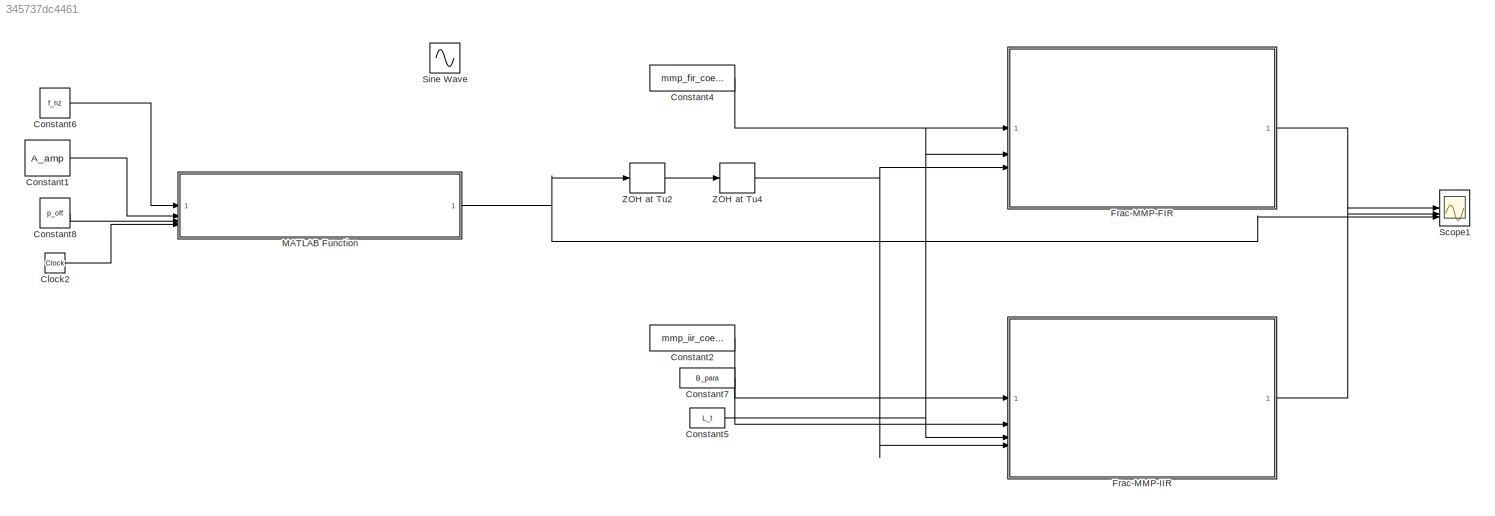
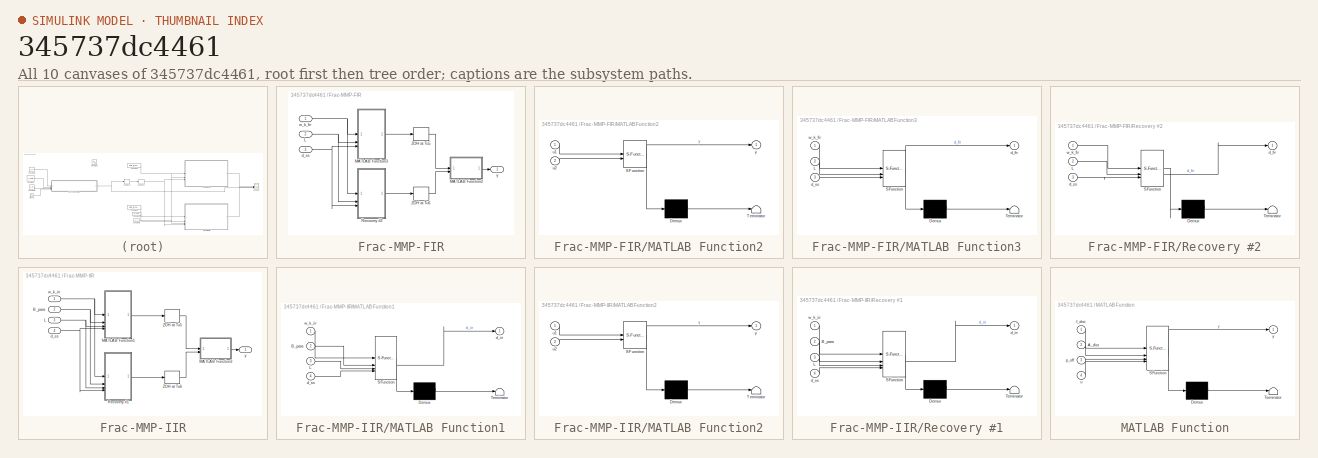
[diagram: thumbnail index - all 10 canvases of the model, root first then tree order]
MODEL slx_345737dc4461
KIND model
CONFIG AbsTol = auto
CONFIG EnableMultiTasking = off
CONFIG FixedStep = auto
CONFIG MaxStep = auto
CONFIG MinStep = auto
CONFIG RelTol = 1e-3
CONFIG SampleTimeConstraint = Unconstrained
CONFIG SolverName = VariableStepAuto
CONFIG StartTime = 0.0
CONFIG StopTime = 0.2
BLOCK [Clock] Clock2
BLOCK [Constant] Constant1
  Value = A_amp
BLOCK [Constant] Constant2
  Value = mmp_iir_coeff
BLOCK [Constant] Constant4
  Value = mmp_fir_coeff
BLOCK [Constant] Constant5
  Value = L_t
BLOCK [Constant] Constant6
  Value = f_hz
BLOCK [Constant] Constant7
  Value = B_para
BLOCK [Constant] Constant8
  Value = p_off
BLOCK [SubSystem] Frac-MMP-FIR
BLOCK [Inport] Frac-MMP-FIR/L
  Port = 2
BLOCK [SubSystem] Frac-MMP-FIR/MATLAB Function2
  ErrorFcn = Stateflow.Translate.translate
  PermitHierarchicalResolution = ExplicitOnly
  SFBlockType = MATLAB Function
  TreatAsAtomicUnit = on
BLOCK [Demux] Frac-MMP-FIR/MATLAB Function2/ Demux 
  Outputs = 1
BLOCK [S-Function] Frac-MMP-FIR/MATLAB Function2/ SFunction 
  EnableBusSupport = on
  FunctionName = sf_sfun
  PortCounts = [2 2]
  SFcnIsStateOwnerBlock = off
  SFunctionDeploymentMode = off
  Tag = Stateflow S-Function 8
BLOCK [Terminator] Frac-MMP-FIR/MATLAB Function2/ Terminator 
BLOCK [Inport] Frac-MMP-FIR/MATLAB Function2/u1
BLOCK [Inport] Frac-MMP-FIR/MATLAB Function2/u2
  Port = 2
BLOCK [Outport] Frac-MMP-FIR/MATLAB Function2/y
BLOCK [SubSystem] Frac-MMP-FIR/MATLAB Function3
  ErrorFcn = Stateflow.Translate.translate
  PermitHierarchicalResolution = ExplicitOnly
  SFBlockType = MATLAB Function
  SystemSampleTime = T_cs
  TreatAsAtomicUnit = on
BLOCK [Demux] Frac-MMP-FIR/MATLAB Function3/ Demux 
  Outputs = 1
BLOCK [S-Function] Frac-MMP-FIR/MATLAB Function3/ SFunction 
  EnableBusSupport = on
  FunctionName = sf_sfun
  PortCounts = [3 2]
  SFcnIsStateOwnerBlock = off
  SFunctionDeploymentMode = off
  Tag = Stateflow S-Function 10
BLOCK [Terminator] Frac-MMP-FIR/MATLAB Function3/ Terminator 
BLOCK [Inport] Frac-MMP-FIR/MATLAB Function3/L
  Port = 2
BLOCK [Outport] Frac-MMP-FIR/MATLAB Function3/d_fir
BLOCK [Inport] Frac-MMP-FIR/MATLAB Function3/d_ss
  Port = 3
BLOCK [Inport] Frac-MMP-FIR/MATLAB Function3/w_k_fir
BLOCK [SubSystem] Frac-MMP-FIR/Recovery #2
  ErrorFcn = Stateflow.Translate.translate
  PermitHierarchicalResolution = ExplicitOnly
  SFBlockType = MATLAB Function
  SystemSampleTime = T_cs
  TreatAsAtomicUnit = on
BLOCK [Demux] Frac-MMP-FIR/Recovery #2/ Demux 
  Outputs = 1
BLOCK [S-Function] Frac-MMP-FIR/Recovery #2/ SFunction 
  EnableBusSupport = on
  FunctionName = sf_sfun
  PortCounts = [3 2]
  SFcnIsStateOwnerBlock = off
  SFunctionDeploymentMode = off
  Tag = Stateflow S-Function 11
BLOCK [Terminator] Frac-MMP-FIR/Recovery #2/ Terminator 
BLOCK [Inport] Frac-MMP-FIR/Recovery #2/L
  Port = 2
BLOCK [Outport] Frac-MMP-FIR/Recovery #2/d_fir
BLOCK [Inport] Frac-MMP-FIR/Recovery #2/d_ss
  Port = 3
BLOCK [Inport] Frac-MMP-FIR/Recovery #2/w_k_fir
BLOCK [ZeroOrderHold] Frac-MMP-FIR/ZOH at Tu5
  SampleTime = T_cs
BLOCK [ZeroOrderHold] Frac-MMP-FIR/ZOH at Tu6
  SampleTime = T_cs
BLOCK [Inport] Frac-MMP-FIR/d_ss
  Port = 3
BLOCK [Inport] Frac-MMP-FIR/w_k_fir
BLOCK [Outport] Frac-MMP-FIR/y
BLOCK [SubSystem] Frac-MMP-IIR
BLOCK [Inport] Frac-MMP-IIR/B_para
  Port = 2
BLOCK [Inport] Frac-MMP-IIR/L
  Port = 3
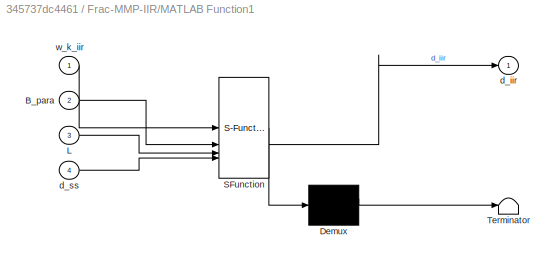
BLOCK [SubSystem] Frac-MMP-IIR/MATLAB Function1
  ErrorFcn = Stateflow.Translate.translate
  PermitHierarchicalResolution = ExplicitOnly
  SFBlockType = MATLAB Function
  SystemSampleTime = T_cs
  TreatAsAtomicUnit = on
BLOCK [Demux] Frac-MMP-IIR/MATLAB Function1/ Demux 
  Outputs = 1
BLOCK [S-Function] Frac-MMP-IIR/MATLAB Function1/ SFunction 
  EnableBusSupport = on
  FunctionName = sf_sfun
  PortCounts = [4 2]
  SFcnIsStateOwnerBlock = off
  SFunctionDeploymentMode = off
  Tag = Stateflow S-Function 5
BLOCK [Terminator] Frac-MMP-IIR/MATLAB Function1/ Terminator 
BLOCK [Inport] Frac-MMP-IIR/MATLAB Function1/B_para
  Port = 2
BLOCK [Inport] Frac-MMP-IIR/MATLAB Function1/L
  Port = 3
BLOCK [Outport] Frac-MMP-IIR/MATLAB Function1/d_iir
BLOCK [Inport] Frac-MMP-IIR/MATLAB Function1/d_ss
  Port = 4
BLOCK [Inport] Frac-MMP-IIR/MATLAB Function1/w_k_iir
BLOCK [SubSystem] Frac-MMP-IIR/MATLAB Function2
  ErrorFcn = Stateflow.Translate.translate
  PermitHierarchicalResolution = ExplicitOnly
  SFBlockType = MATLAB Function
  TreatAsAtomicUnit = on
BLOCK [Demux] Frac-MMP-IIR/MATLAB Function2/ Demux 
  Outputs = 1
BLOCK [S-Function] Frac-MMP-IIR/MATLAB Function2/ SFunction 
  EnableBusSupport = on
  FunctionName = sf_sfun
  PortCounts = [2 2]
  SFcnIsStateOwnerBlock = off
  SFunctionDeploymentMode = off
  Tag = Stateflow S-Function 6
BLOCK [Terminator] Frac-MMP-IIR/MATLAB Function2/ Terminator 
BLOCK [Inport] Frac-MMP-IIR/MATLAB Function2/u1
BLOCK [Inport] Frac-MMP-IIR/MATLAB Function2/u2
  Port = 2
BLOCK [Outport] Frac-MMP-IIR/MATLAB Function2/y
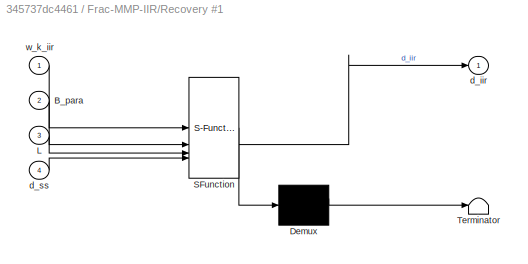
BLOCK [SubSystem] Frac-MMP-IIR/Recovery #1
  ErrorFcn = Stateflow.Translate.translate
  PermitHierarchicalResolution = ExplicitOnly
  SFBlockType = MATLAB Function
  SystemSampleTime = T_cs
  TreatAsAtomicUnit = on
BLOCK [Demux] Frac-MMP-IIR/Recovery #1/ Demux 
  Outputs = 1
BLOCK [S-Function] Frac-MMP-IIR/Recovery #1/ SFunction 
  EnableBusSupport = on
  FunctionName = sf_sfun
  PortCounts = [4 2]
  SFcnIsStateOwnerBlock = off
  SFunctionDeploymentMode = off
  Tag = Stateflow S-Function 3
BLOCK [Terminator] Frac-MMP-IIR/Recovery #1/ Terminator 
BLOCK [Inport] Frac-MMP-IIR/Recovery #1/B_para
  Port = 2
BLOCK [Inport] Frac-MMP-IIR/Recovery #1/L
  Port = 3
BLOCK [Outport] Frac-MMP-IIR/Recovery #1/d_iir
BLOCK [Inport] Frac-MMP-IIR/Recovery #1/d_ss
  Port = 4
BLOCK [Inport] Frac-MMP-IIR/Recovery #1/w_k_iir
BLOCK [ZeroOrderHold] Frac-MMP-IIR/ZOH at Tu5
  SampleTime = T_cs
BLOCK [ZeroOrderHold] Frac-MMP-IIR/ZOH at Tu6
  SampleTime = T_cs
BLOCK [Inport] Frac-MMP-IIR/d_ss
  Port = 4
BLOCK [Inport] Frac-MMP-IIR/w_k_iir
BLOCK [Outport] Frac-MMP-IIR/y
BLOCK [SubSystem] MATLAB Function
  ErrorFcn = Stateflow.Translate.translate
  LibrarySourceBlock = simulink/User-Defined\nFunctions/MATLAB Function
  PermitHierarchicalResolution = ExplicitOnly
  SFBlockType = MATLAB Function
  TreatAsAtomicUnit = on
BLOCK [Demux] MATLAB Function/ Demux 
  Outputs = 1
BLOCK [S-Function] MATLAB Function/ SFunction 
  EnableBusSupport = on
  FunctionName = sf_sfun
  PortCounts = [4 2]
  SFcnIsStateOwnerBlock = off
  SFunctionDeploymentMode = off
  Tag = Stateflow S-Function 2
BLOCK [Terminator] MATLAB Function/ Terminator 
BLOCK [Inport] MATLAB Function/A_dist
  Port = 2
BLOCK [Inport] MATLAB Function/f_dist
BLOCK [Inport] MATLAB Function/p_off
  Port = 3
BLOCK [Inport] MATLAB Function/u
  Port = 4
BLOCK [Outport] MATLAB Function/y
BLOCK [Scope] Scope1
  Floating = off
  NumInputPorts = 3
  ScopeSpecificationString = Simulink.scopes.TimeScopeBlockCfg('CurrentConfiguration', extmgr.ConfigurationSet(extmgr.Configuration('Core','General UI',true),extmgr.Configuration('Core','Source UI',true),extmgr.Configuration('Sources','WiredSimulink',true,'DataLoggingVariableName','ScopeData1'),extmgr.Configuration('Visuals','Time Domain',true,'SerializedDisplays',{struct('MinYLimReal','-0.8938','MaxYLimReal','0.96282','YLabe...<+1634ch>
BLOCK [Sin] Sine Wave
  Commented = on
  Frequency = w_d/T_fs
  SampleTime = T_cs/50
BLOCK [ZeroOrderHold] ZOH at Tu2
  SampleTime = T_ss
BLOCK [ZeroOrderHold] ZOH at Tu4
  SampleTime = T_cs
LINE Clock2:1 -> MATLAB Function:4
LINE Constant1:1 -> MATLAB Function:2
LINE Constant2:1 -> Frac-MMP-IIR:1
LINE Constant4:1 -> Frac-MMP-FIR:1
NET Constant5:1 -> Frac-MMP-FIR:2, Frac-MMP-IIR:3
LINE Constant6:1 -> MATLAB Function:1
LINE Constant7:1 -> Frac-MMP-IIR:2
LINE Constant8:1 -> MATLAB Function:3
NET Frac-MMP-FIR/L:1 -> Frac-MMP-FIR/MATLAB Function3:2, Frac-MMP-FIR/Recovery #2:2
LINE Frac-MMP-FIR/MATLAB Function2:1 -> Frac-MMP-FIR/y:1
LINE Frac-MMP-FIR/MATLAB Function3:1 -> Frac-MMP-FIR/ZOH at Tu5:1
LINE Frac-MMP-FIR/Recovery #2:1 -> Frac-MMP-FIR/ZOH at Tu6:1
LINE Frac-MMP-FIR/ZOH at Tu5:1 -> Frac-MMP-FIR/MATLAB Function2:1
LINE Frac-MMP-FIR/ZOH at Tu6:1 -> Frac-MMP-FIR/MATLAB Function2:2
NET Frac-MMP-FIR/d_ss:1 -> Frac-MMP-FIR/MATLAB Function3:3, Frac-MMP-FIR/Recovery #2:3
NET Frac-MMP-FIR/w_k_fir:1 -> Frac-MMP-FIR/MATLAB Function3:1, Frac-MMP-FIR/Recovery #2:1
LINE Frac-MMP-FIR:1 -> Scope1:1
NET Frac-MMP-IIR/B_para:1 -> Frac-MMP-IIR/MATLAB Function1:2, Frac-MMP-IIR/Recovery #1:2
NET Frac-MMP-IIR/L:1 -> Frac-MMP-IIR/MATLAB Function1:3, Frac-MMP-IIR/Recovery #1:3
LINE Frac-MMP-IIR/MATLAB Function1:1 -> Frac-MMP-IIR/ZOH at Tu5:1
LINE Frac-MMP-IIR/MATLAB Function2:1 -> Frac-MMP-IIR/y:1
LINE Frac-MMP-IIR/Recovery #1:1 -> Frac-MMP-IIR/ZOH at Tu6:1
LINE Frac-MMP-IIR/ZOH at Tu5:1 -> Frac-MMP-IIR/MATLAB Function2:1
LINE Frac-MMP-IIR/ZOH at Tu6:1 -> Frac-MMP-IIR/MATLAB Function2:2
NET Frac-MMP-IIR/d_ss:1 -> Frac-MMP-IIR/MATLAB Function1:4, Frac-MMP-IIR/Recovery #1:4
NET Frac-MMP-IIR/w_k_iir:1 -> Frac-MMP-IIR/MATLAB Function1:1, Frac-MMP-IIR/Recovery #1:1
LINE Frac-MMP-IIR:1 -> Scope1:2
NET MATLAB Function:1 -> Scope1:3, ZOH at Tu2:1
LINE ZOH at Tu2:1 -> ZOH at Tu4:1
NET ZOH at Tu4:1 -> Frac-MMP-FIR:3, Frac-MMP-IIR:4
note: NET lines group one-source signal fan-out (src -> all destinations, sorted); 1:1 wires keep LINE
CHART MATLAB Function states=1 transitions=1
  STATE_LABEL 'eML_blk_kernel()'
  STATE_LABEL 'SCRIPT:\nfunction y = fcn(f_dist,A_dist,p_off,u)\ny = zeros(1,length(u));\nfor i = 1:length(f_dist)\ny = y + A_dist(i)*sin(2*pi*f_dist(i)*u+p_off(i));\nend'
CHART Frac-MMP-IIR/Recovery #1 states=1 transitions=1
  STATE_LABEL 'eML_blk_kernel()'
  STATE_LABEL "SCRIPT:\nfunction d_iir  = fcn(w_k_iir, B_para, L, d_ss)\n    % Keeps data of variables\n    persistent  n_w phi n_cs n_ss d_buff d_fs_iir max_buffer_size buffer_indices N_L D_L\n    % Assigning initial values   \n    if isempty(n_w)\n        n_w = size(w_k_iir,1); % n_w = 2m disturbances (index starts at 0,1,...,2m-1)\n        phi = zeros(1, n_w, 'like', d_ss); % Preallocate phi using the same type as d...<+1909ch>"
CHART Frac-MMP-IIR/MATLAB Function1 states=1 transitions=1
  STATE_LABEL 'eML_blk_kernel()'
  STATE_LABEL "SCRIPT:\nfunction d_iir  = fcn(w_k_iir, B_para, L, d_ss)\n    % Keeps data of variables\n    persistent  n_w phi n_cs n_ss d_buff d_fs_iir max_buffer_size buffer_indices N_L D_L\n    % Assigning initial values   \n    if isempty(n_w)\n        n_w = size(w_k_iir,1); % n_w = 2m disturbances (index starts at 0,1,...,2m-1)\n        phi = zeros(1, n_w, 'like', d_ss); % Preallocate phi using the same type as d...<+1944ch>"
CHART Frac-MMP-IIR/MATLAB Function2 states=1 transitions=1
  STATE_LABEL 'eML_blk_kernel()'
  STATE_LABEL 'SCRIPT:\nfunction y = summation(u1,u2)\n\npersistent k\n\nif isempty(k)\n    k = uint32(0);\nend\n\nif mod(k,2) == 0\n    y = u1;\nelse\n    y = u2;\nend\n\nk = k + 1;\n'
CHART Frac-MMP-FIR/MATLAB Function2 states=1 transitions=1
  STATE_LABEL 'eML_blk_kernel()'
  STATE_LABEL 'SCRIPT:\nfunction y = summation(u1,u2)\n\npersistent k\n\nif isempty(k)\n    k = uint32(0);\nend\n\nif mod(k,2) == 0\n    y = u1;\nelse\n    y = u2;\nend\n\nk = k + 1;\n'
CHART Frac-MMP-FIR/MATLAB Function3 states=1 transitions=1
  STATE_LABEL 'eML_blk_kernel()'
  STATE_LABEL "SCRIPT:\nfunction d_fir  = fcn(w_k_fir, L, d_ss)\n    % Keeps data of variables\n    persistent  n_w phi n_cs n_ss d_fs_fir D_L N_L\n    % Assigning initial values   \n    if isempty(n_w)\n        n_w = size(w_k_fir,1); % n_w = 2m disturbances (index starts at 0,1,...,2m-1)\n        phi = zeros(1, n_w, 'like', d_ss); % Preallocate phi using the same type as d_ss\n        n_cs = 0; % combined sampling coun...<+1084ch>"
CHART Frac-MMP-FIR/Recovery #2 states=1 transitions=1
  STATE_LABEL 'eML_blk_kernel()'
  STATE_LABEL "SCRIPT:\nfunction d_fir = fcn(w_k_fir, L, d_ss)\n    % Keeps data of variables\n    persistent  n_w phi n_cs n_ss d_fs_fir N_L D_L\n    % Assigning initial values   \n    if isempty(n_w)\n        n_w = size(w_k_fir,1); % n_w = 2m disturbances (index starts at 0,1,...,2m-1)\n        phi = zeros(1, n_w, 'like', d_ss); % Preallocate phi using the same type as d_ss\n        [N_L, D_L] = rat(L);\n        n_cs =...<+1078ch>"
CHART  states=0 transitions=0
CHART  states=0 transitions=0
CHART  states=0 transitions=0
CHART  states=0 transitions=0
CHART  states=0 transitions=0
CHART  states=0 transitions=0
CHART  states=0 transitions=0
